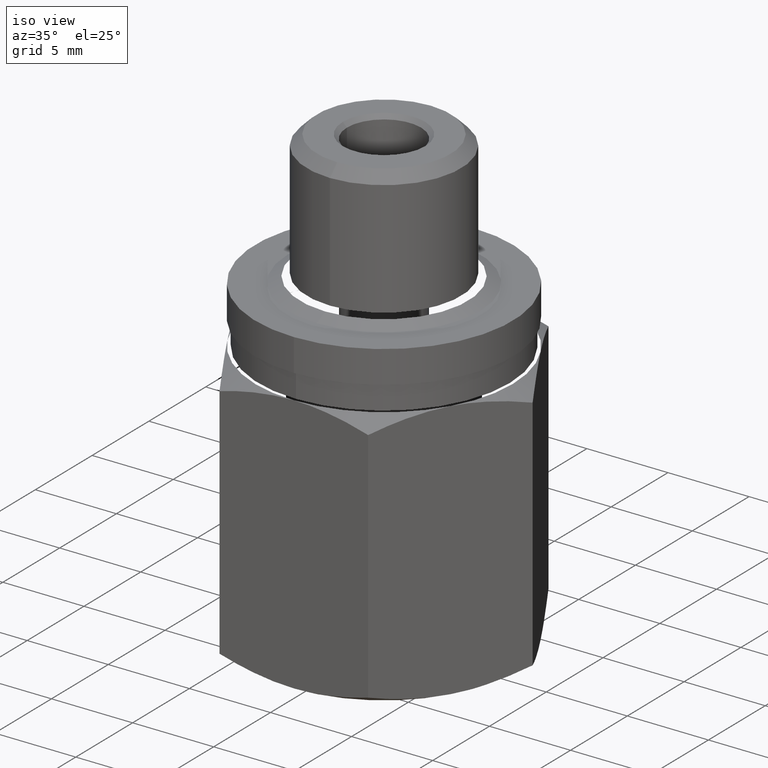
[diagram: clean part render]
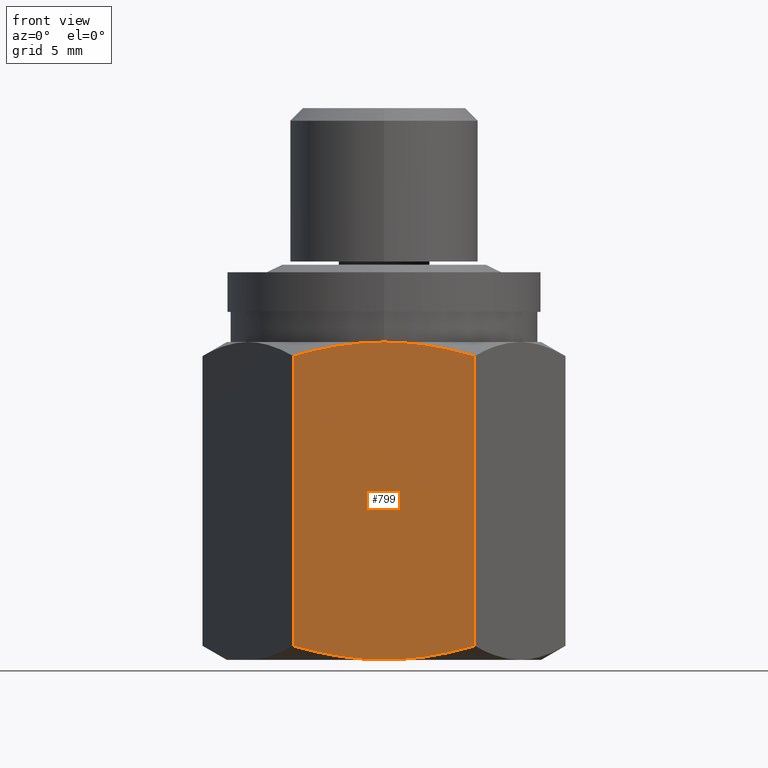
[diagram: tour spotlight — one face highlighted and labeled with its STEP entity id]
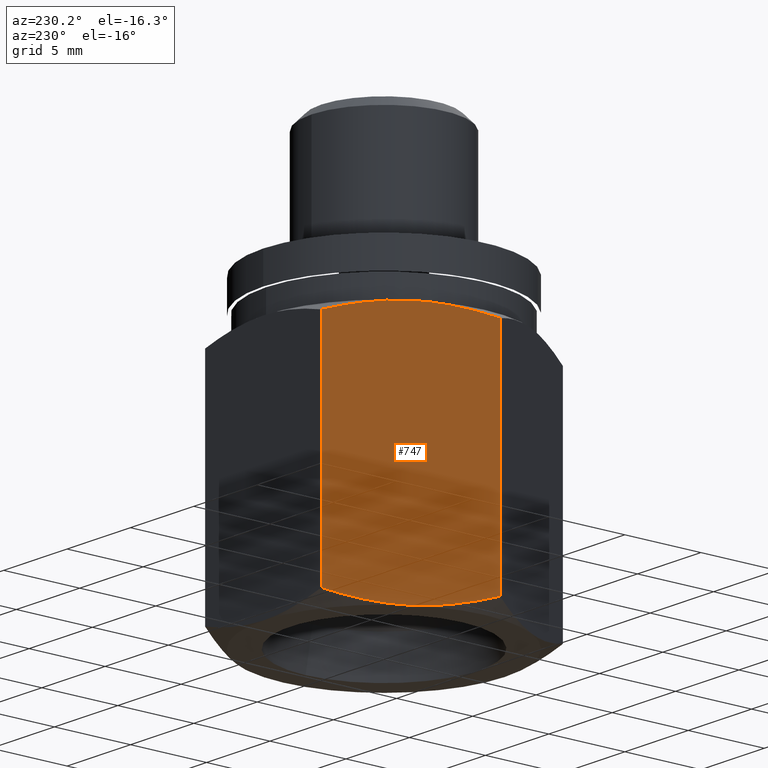
[diagram: tour spotlight — one face highlighted and labeled with its STEP entity id]
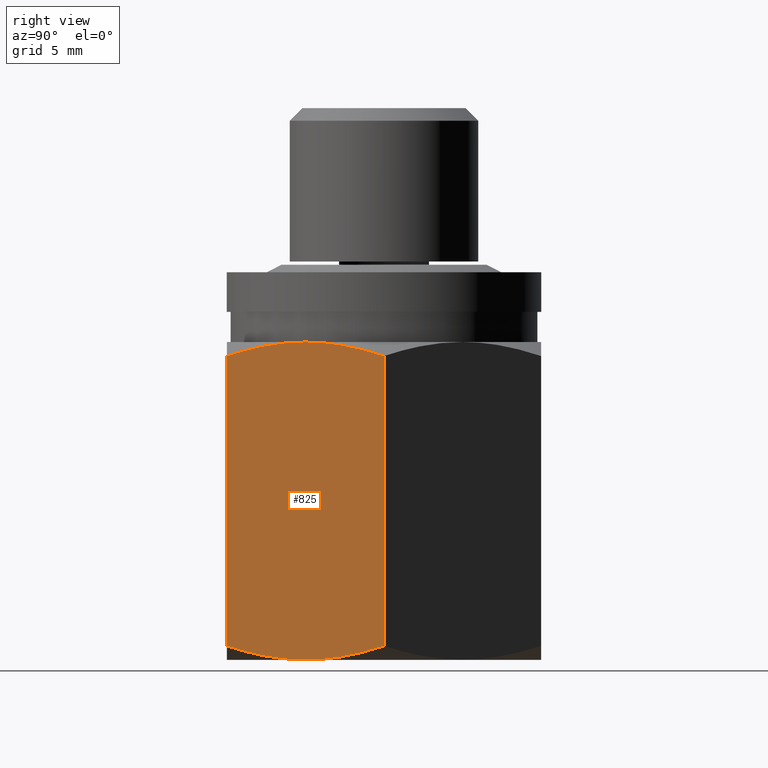
[diagram: tour spotlight — one face highlighted and labeled with its STEP entity id]
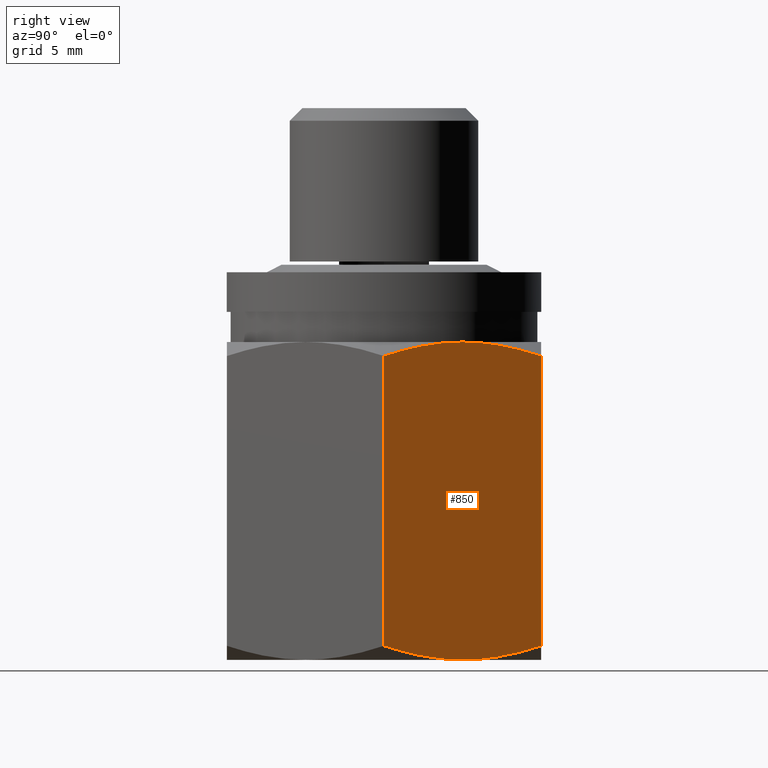
[diagram: tour spotlight — one face highlighted and labeled with its STEP entity id]
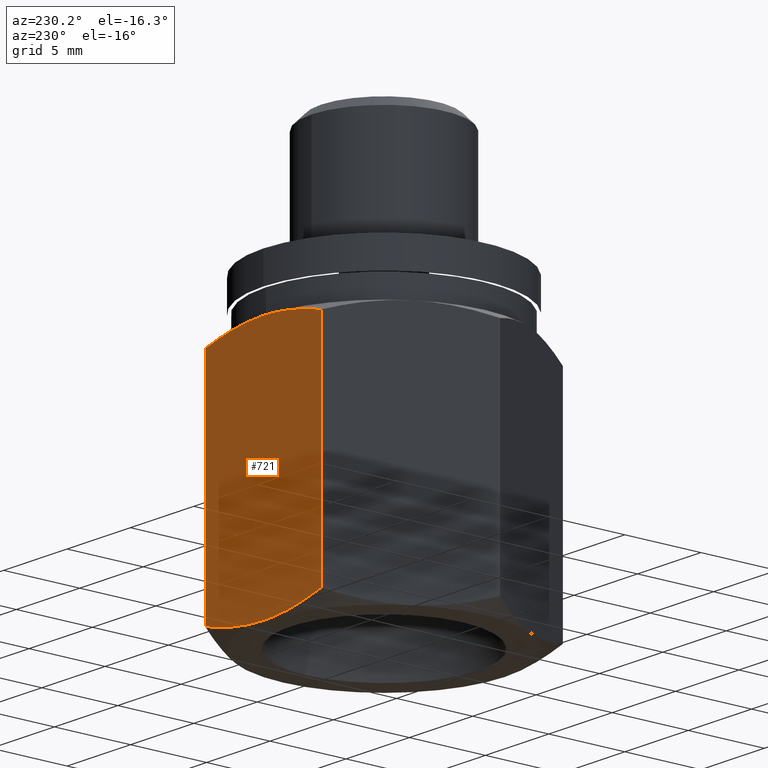
[diagram: tour spotlight — one face highlighted and labeled with its STEP entity id]
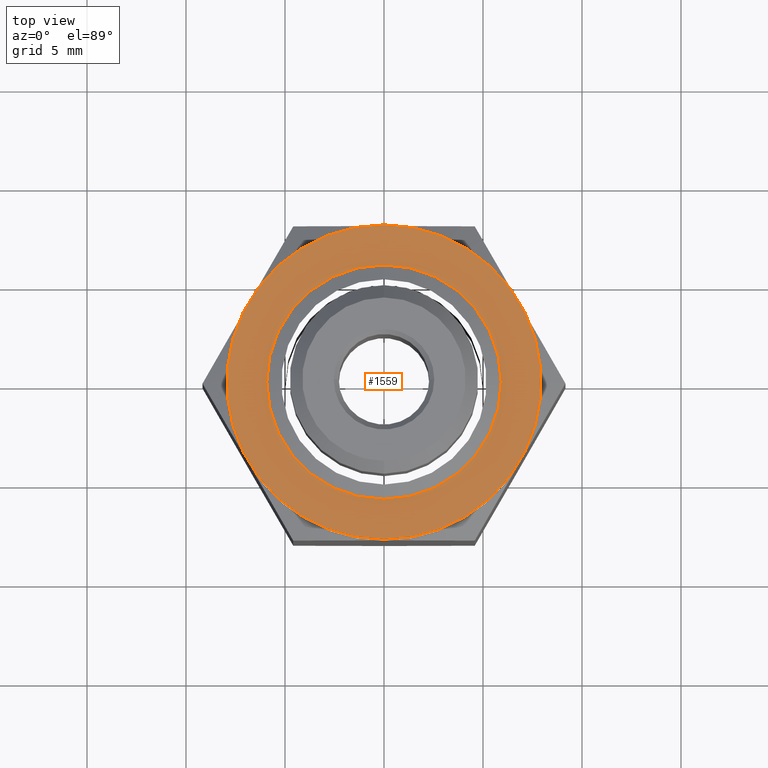
[diagram: tour spotlight — one face highlighted and labeled with its STEP entity id]
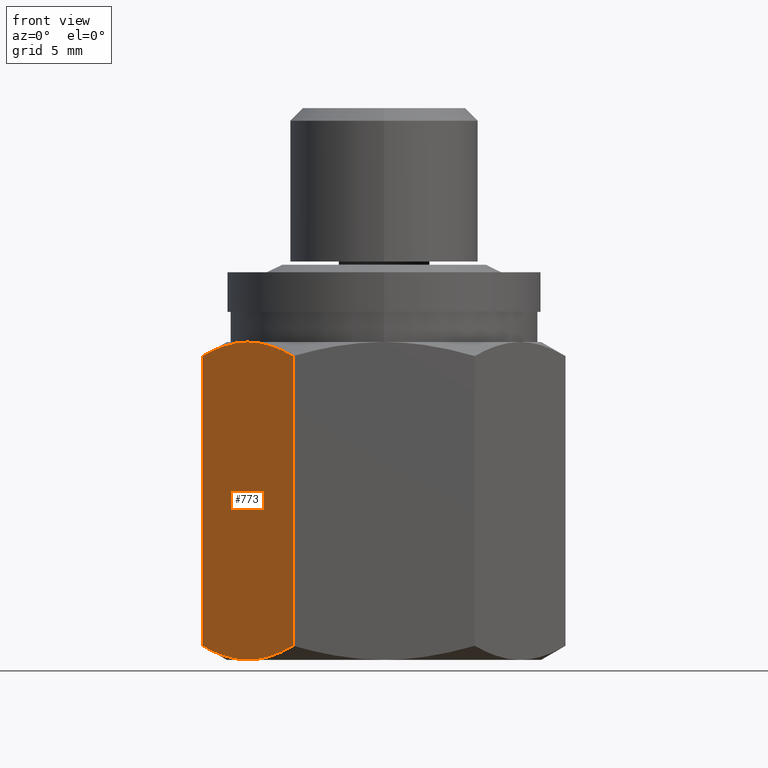
[diagram: tour spotlight — one face highlighted and labeled with its STEP entity id]
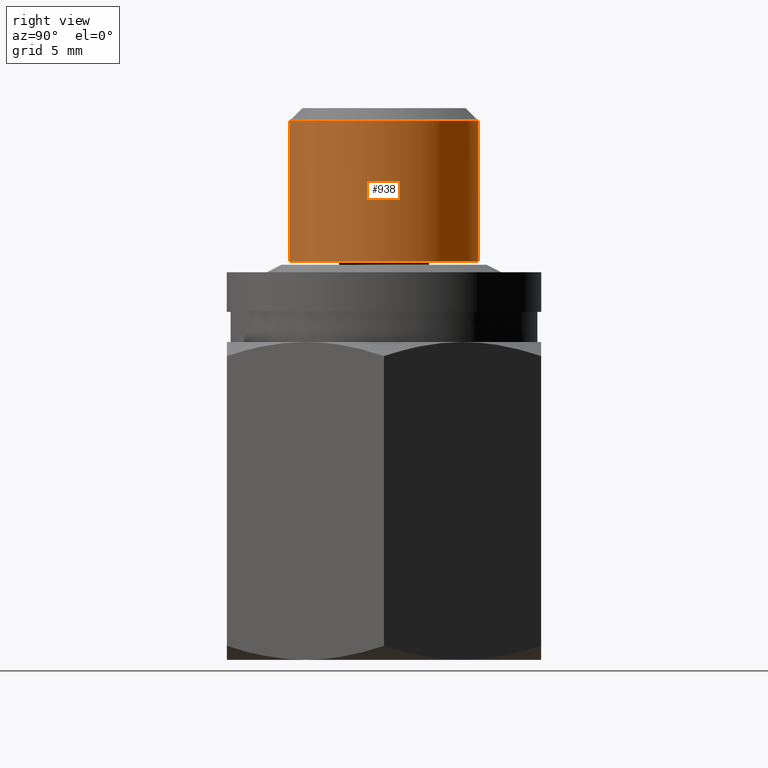
[diagram: tour spotlight — one face highlighted and labeled with its STEP entity id]
A machine part: a face-by-face anatomy tour. The part has 43 B-rep faces; the first image is the clean iso view, then the 8 largest visible faces are spotlighted one at a time (largest first), each with its STEP entity span.

Face 1 — front view, entity #799. In plain terms, the highlighted planar face has unit normal (0, -1, 0).
Definition (entity closure, byte-faithful):
#219=CARTESIAN_POINT('',(-1.804219591218E-1,-3.125E-1,6.140886257884E-1));
#243=CARTESIAN_POINT('',(-1.804219591218E-1,-3.125E-1,6.140886257884E-1));
#244=CARTESIAN_POINT('',(-1.676476933301E-1,-3.125E-1,6.177762386852E-1));
#245=CARTESIAN_POINT('',(-1.425130374881E-1,-3.125E-1,6.244395216412E-1));
#246=CARTESIAN_POINT('',(-1.063505203457E-1,-3.125E-1,6.321723768668E-1));
#247=CARTESIAN_POINT('',(-7.076736542900E-2,-3.125E-1,6.377914402994E-1));
#248=CARTESIAN_POINT('',(-3.538157514809E-2,-3.125E-1,6.412264455286E-1));
#249=CARTESIAN_POINT('',(-1.178700062577E-2,-3.125E-1,6.419999999989E-1));
#250=CARTESIAN_POINT('',(-3.403681971502E-11,-3.125E-1,6.420000000004E-1));
#252=CARTESIAN_POINT('',(-3.403681971502E-11,-3.125E-1,6.420000000004E-1));
#253=CARTESIAN_POINT('',(1.179003376579E-2,-3.125E-1,6.420000000004E-1));
#254=CARTESIAN_POINT('',(3.539010301308E-2,-3.125E-1,6.412260444374E-1));
#255=CARTESIAN_POINT('',(7.078380892595E-2,-3.125E-1,6.377895415508E-1));
#256=CARTESIAN_POINT('',(1.063703877697E-1,-3.125E-1,6.321683583414E-1));
#257=CARTESIAN_POINT('',(1.425054379211E-1,-3.125E-1,6.244410530485E-1));
#258=CARTESIAN_POINT('',(1.676439540257E-1,-3.125E-1,6.177773181294E-1));
#259=CARTESIAN_POINT('',(1.804219591218E-1,-3.125E-1,6.140886257884E-1));
#261=CARTESIAN_POINT('',(-3.577946565269E-11,-3.125000000008E-1,
9.999999999728E-3));
#262=CARTESIAN_POINT('',(1.179990032529E-2,-3.125000000008E-1,
9.999999999728E-3));
#263=CARTESIAN_POINT('',(3.541651289478E-2,-3.124999999996E-1,
1.077526852884E-2));
#264=CARTESIAN_POINT('',(7.082540042885E-2,-3.125000000001E-1,
1.421553514686E-2));
#265=CARTESIAN_POINT('',(1.064177237590E-1,-3.125E-1,1.984066810150E-2));
#266=CARTESIAN_POINT('',(1.425306468530E-1,-3.125E-1,2.756546268185E-2));
#267=CARTESIAN_POINT('',(1.676534650936E-1,-3.125E-1,3.422542747942E-2));
#268=CARTESIAN_POINT('',(1.804219591218E-1,-3.125E-1,3.791137421158E-2));
#270=CARTESIAN_POINT('',(-1.804219591218E-1,-3.125E-1,3.791137421158E-2));
#271=CARTESIAN_POINT('',(-1.676555310705E-1,-3.125E-1,3.422602387558E-2));
#272=CARTESIAN_POINT('',(-1.425347772302E-1,-3.125E-1,2.756630550637E-2));
#273=CARTESIAN_POINT('',(-1.064074824283E-1,-3.125E-1,1.983857860519E-2));
#274=CARTESIAN_POINT('',(-7.081545652493E-2,-3.125000000001E-1,
1.421433805572E-2));
#275=CARTESIAN_POINT('',(-3.541006988518E-2,-3.124999999996E-1,
1.077493875540E-2));
#276=CARTESIAN_POINT('',(-1.179744973759E-2,-3.125000000008E-1,
1.000000000123E-2));
#277=CARTESIAN_POINT('',(-3.577946565269E-11,-3.125000000008E-1,
9.999999999728E-3));
#279=DIRECTION('',(0.E0,0.E0,1.E0));
#280=VECTOR('',#279,5.761772515768E-1);
#281=CARTESIAN_POINT('',(-1.804219591218E-1,-3.125E-1,3.791137421158E-2));
#282=LINE('',#281,#280);
#310=CARTESIAN_POINT('',(1.804219591218E-1,-3.125E-1,3.791137421158E-2));
#319=DIRECTION('',(0.E0,0.E0,1.E0));
#320=VECTOR('',#319,5.761772515768E-1);
#321=CARTESIAN_POINT('',(1.804219591218E-1,-3.125E-1,3.791137421158E-2));
#322=LINE('',#321,#320);
#647=VERTEX_POINT('',#270);
#648=VERTEX_POINT('',#277);
#649=VERTEX_POINT('',#310);
#659=VERTEX_POINT('',#219);
#660=VERTEX_POINT('',#250);
#661=VERTEX_POINT('',#259);
#781=CARTESIAN_POINT('',(-1.804219591218E-1,-3.125E-1,0.E0));
#782=DIRECTION('',(0.E0,-1.E0,0.E0));
#783=DIRECTION('',(1.E0,0.E0,0.E0));
#784=AXIS2_PLACEMENT_3D('',#781,#782,#783);
#785=PLANE('',#784);
#787=ORIENTED_EDGE('',*,*,#786,.T.);
#789=ORIENTED_EDGE('',*,*,#788,.T.);
#791=ORIENTED_EDGE('',*,*,#790,.F.);
#793=ORIENTED_EDGE('',*,*,#792,.F.);
#795=ORIENTED_EDGE('',*,*,#794,.F.);
#796=ORIENTED_EDGE('',*,*,#764,.T.);
#797=EDGE_LOOP('',(#787,#789,#791,#793,#795,#796));
#798=FACE_OUTER_BOUND('',#797,.F.);
#251=B_SPLINE_CURVE_WITH_KNOTS('',3,(#243,#244,#245,#246,#247,#248,#249,#250),
.UNSPECIFIED.,.F.,.F.,(4,1,1,1,1,4),(0.E0,2.E-1,4.E-1,6.E-1,8.E-1,1.E0),
.UNSPECIFIED.);
#260=B_SPLINE_CURVE_WITH_KNOTS('',3,(#252,#253,#254,#255,#256,#257,#258,#259),
.UNSPECIFIED.,.F.,.F.,(4,1,1,1,1,4),(0.E0,2.E-1,4.E-1,6.E-1,8.E-1,1.E0),
.UNSPECIFIED.);
#269=B_SPLINE_CURVE_WITH_KNOTS('',3,(#261,#262,#263,#264,#265,#266,#267,#268),
.UNSPECIFIED.,.F.,.F.,(4,1,1,1,1,4),(0.E0,2.E-1,4.E-1,6.E-1,8.E-1,1.E0),
.UNSPECIFIED.);
#278=B_SPLINE_CURVE_WITH_KNOTS('',3,(#270,#271,#272,#273,#274,#275,#276,#277),
.UNSPECIFIED.,.F.,.F.,(4,1,1,1,1,4),(0.E0,2.E-1,4.E-1,6.E-1,8.E-1,1.E0),
.UNSPECIFIED.);
#764=EDGE_CURVE('',#647,#659,#282,.T.);
#786=EDGE_CURVE('',#659,#660,#251,.T.);
#788=EDGE_CURVE('',#660,#661,#260,.T.);
#790=EDGE_CURVE('',#649,#661,#322,.T.);
#792=EDGE_CURVE('',#648,#649,#269,.T.);
#794=EDGE_CURVE('',#647,#648,#278,.T.);
#799=ADVANCED_FACE('',(#798),#785,.T.);

Face 2 — auxiliary view, entity #747. In plain terms, the highlighted planar face has unit normal (-0.866, 0.5, 0).
Definition (entity closure, byte-faithful):
#139=CARTESIAN_POINT('',(-1.804219591218E-1,3.125E-1,6.140886257884E-1));
#163=CARTESIAN_POINT('',(-1.804219591218E-1,3.125E-1,6.140886257884E-1));
#164=CARTESIAN_POINT('',(-1.868090920180E-1,3.014371613090E-1,
6.177762386854E-1));
#165=CARTESIAN_POINT('',(-1.993764199397E-1,2.796699108332E-1,
6.244395216417E-1));
#166=CARTESIAN_POINT('',(-2.174576785120E-1,2.483522523212E-1,
6.321723768677E-1));
#167=CARTESIAN_POINT('',(-2.352492559712E-1,2.175363362151E-1,
6.377914403003E-1));
#168=CARTESIAN_POINT('',(-2.529421511136E-1,1.868913428954E-1,
6.412264455293E-1));
#169=CARTESIAN_POINT('',(-2.647394383733E-1,1.664578419702E-1,
6.419999999990E-1));
#170=CARTESIAN_POINT('',(-2.706329386683E-1,1.562500000249E-1,
6.420000000003E-1));
#172=CARTESIAN_POINT('',(-2.706329386683E-1,1.562500000249E-1,
6.420000000003E-1));
#173=CARTESIAN_POINT('',(-2.765279555667E-1,1.460395312453E-1,
6.420000000003E-1));
#174=CARTESIAN_POINT('',(-2.883279901886E-1,1.256012717491E-1,
6.412260444374E-1));
#175=CARTESIAN_POINT('',(-3.060248431458E-1,9.494942329325E-2,
6.377895415508E-1));
#176=CARTESIAN_POINT('',(-3.238181325674E-1,6.413054198114E-2,
6.321683583414E-1));
#177=CARTESIAN_POINT('',(-3.418856576432E-1,3.283667058290E-2,
6.244410530485E-1));
#178=CARTESIAN_POINT('',(-3.544549156955E-1,1.106607702287E-2,
6.177773181294E-1));
#179=CARTESIAN_POINT('',(-3.608439182435E-1,0.E0,6.140886257884E-1));
#181=CARTESIAN_POINT('',(-2.706329386690E-1,1.562500000251E-1,
9.999999999775E-3));
#182=CARTESIAN_POINT('',(-2.765328888481E-1,1.460309865529E-1,
9.999999999775E-3));
#183=CARTESIAN_POINT('',(-2.883411951287E-1,1.255784001212E-1,
1.077526852882E-2));
#184=CARTESIAN_POINT('',(-3.060456388974E-1,9.491340399500E-2,
1.421553514687E-2));
#185=CARTESIAN_POINT('',(-3.238418005621E-1,6.408954781188E-2,
1.984066810149E-2));
#186=CARTESIAN_POINT('',(-3.418982621092E-1,3.281483900741E-2,
2.756546268185E-2));
#187=CARTESIAN_POINT('',(-3.544596712294E-1,1.105784019647E-2,
3.422542747942E-2));
#188=CARTESIAN_POINT('',(-3.608439182435E-1,0.E0,3.791137421158E-2));
#190=CARTESIAN_POINT('',(-1.804219591218E-1,3.125E-1,3.791137421158E-2));
#191=CARTESIAN_POINT('',(-1.868051731480E-1,3.014439489909E-1,
3.422602387522E-2));
#192=CARTESIAN_POINT('',(-1.993655500694E-1,2.796887380010E-1,
2.756630550543E-2));
#193=CARTESIAN_POINT('',(-2.174291974720E-1,2.484015829295E-1,
1.983857860382E-2));
#194=CARTESIAN_POINT('',(-2.352252104252E-1,2.175779843227E-1,
1.421433805431E-2));
#195=CARTESIAN_POINT('',(-2.529279037477E-1,1.869160200564E-1,
1.077493875446E-2));
#196=CARTESIAN_POINT('',(-2.647342138204E-1,1.664668911628E-1,
1.000000000078E-2));
#197=CARTESIAN_POINT('',(-2.706329386690E-1,1.562500000251E-1,
9.999999999775E-3));
#199=DIRECTION('',(0.E0,0.E0,1.E0));
#200=VECTOR('',#199,5.761772515768E-1);
#201=CARTESIAN_POINT('',(-1.804219591218E-1,3.125E-1,3.791137421158E-2));
#202=LINE('',#201,#200);
#230=CARTESIAN_POINT('',(-3.608439182435E-1,0.E0,3.791137421158E-2));
#239=DIRECTION('',(0.E0,0.E0,1.E0));
#240=VECTOR('',#239,5.761772515768E-1);
#241=CARTESIAN_POINT('',(-3.608439182435E-1,0.E0,3.791137421158E-2));
#242=LINE('',#241,#240);
#643=VERTEX_POINT('',#190);
#644=VERTEX_POINT('',#197);
#645=VERTEX_POINT('',#230);
#655=VERTEX_POINT('',#139);
#656=VERTEX_POINT('',#170);
#657=VERTEX_POINT('',#179);
#729=CARTESIAN_POINT('',(-1.804219591218E-1,3.125E-1,0.E0));
#730=DIRECTION('',(-8.660254037844E-1,5.E-1,0.E0));
#731=DIRECTION('',(-5.E-1,-8.660254037844E-1,0.E0));
#732=AXIS2_PLACEMENT_3D('',#729,#730,#731);
#733=PLANE('',#732);
#735=ORIENTED_EDGE('',*,*,#734,.T.);
#737=ORIENTED_EDGE('',*,*,#736,.T.);
#739=ORIENTED_EDGE('',*,*,#738,.F.);
#741=ORIENTED_EDGE('',*,*,#740,.F.);
#743=ORIENTED_EDGE('',*,*,#742,.F.);
#744=ORIENTED_EDGE('',*,*,#711,.T.);
#745=EDGE_LOOP('',(#735,#737,#739,#741,#743,#744));
#746=FACE_OUTER_BOUND('',#745,.F.);
#171=B_SPLINE_CURVE_WITH_KNOTS('',3,(#163,#164,#165,#166,#167,#168,#169,#170),
.UNSPECIFIED.,.F.,.F.,(4,1,1,1,1,4),(0.E0,2.E-1,4.E-1,6.E-1,8.E-1,1.E0),
.UNSPECIFIED.);
#180=B_SPLINE_CURVE_WITH_KNOTS('',3,(#172,#173,#174,#175,#176,#177,#178,#179),
.UNSPECIFIED.,.F.,.F.,(4,1,1,1,1,4),(0.E0,2.E-1,4.E-1,6.E-1,8.E-1,1.E0),
.UNSPECIFIED.);
#189=B_SPLINE_CURVE_WITH_KNOTS('',3,(#181,#182,#183,#184,#185,#186,#187,#188),
.UNSPECIFIED.,.F.,.F.,(4,1,1,1,1,4),(0.E0,2.E-1,4.E-1,6.E-1,8.E-1,1.E0),
.UNSPECIFIED.);
#198=B_SPLINE_CURVE_WITH_KNOTS('',3,(#190,#191,#192,#193,#194,#195,#196,#197),
.UNSPECIFIED.,.F.,.F.,(4,1,1,1,1,4),(0.E0,2.E-1,4.E-1,6.E-1,8.E-1,1.E0),
.UNSPECIFIED.);
#711=EDGE_CURVE('',#643,#655,#202,.T.);
#734=EDGE_CURVE('',#655,#656,#171,.T.);
#736=EDGE_CURVE('',#656,#657,#180,.T.);
#738=EDGE_CURVE('',#645,#657,#242,.T.);
#740=EDGE_CURVE('',#644,#645,#189,.T.);
#742=EDGE_CURVE('',#643,#644,#198,.T.);
#747=ADVANCED_FACE('',(#746),#733,.T.);

Face 3 — right view, entity #825. In plain terms, the highlighted planar face has unit normal (0.866, -0.5, 0).
Definition (entity closure, byte-faithful):
#259=CARTESIAN_POINT('',(1.804219591218E-1,-3.125E-1,6.140886257884E-1));
#283=CARTESIAN_POINT('',(1.804219591218E-1,-3.125E-1,6.140886257884E-1));
#284=CARTESIAN_POINT('',(1.868090920180E-1,-3.014371613090E-1,
6.177762386854E-1));
#285=CARTESIAN_POINT('',(1.993764199397E-1,-2.796699108332E-1,
6.244395216417E-1));
#286=CARTESIAN_POINT('',(2.174576785120E-1,-2.483522523212E-1,
6.321723768677E-1));
#287=CARTESIAN_POINT('',(2.352492559712E-1,-2.175363362151E-1,
6.377914403003E-1));
#288=CARTESIAN_POINT('',(2.529421511136E-1,-1.868913428954E-1,
6.412264455293E-1));
#289=CARTESIAN_POINT('',(2.647394383733E-1,-1.664578419702E-1,
6.419999999990E-1));
#290=CARTESIAN_POINT('',(2.706329386683E-1,-1.562500000249E-1,
6.420000000003E-1));
#292=CARTESIAN_POINT('',(2.706329386683E-1,-1.562500000249E-1,
6.420000000003E-1));
#293=CARTESIAN_POINT('',(2.765279555667E-1,-1.460395312453E-1,
6.420000000003E-1));
#294=CARTESIAN_POINT('',(2.883279901886E-1,-1.256012717491E-1,
6.412260444374E-1));
#295=CARTESIAN_POINT('',(3.060248431458E-1,-9.494942329325E-2,
6.377895415508E-1));
#296=CARTESIAN_POINT('',(3.238181325674E-1,-6.413054198114E-2,
6.321683583414E-1));
#297=CARTESIAN_POINT('',(3.418856576432E-1,-3.283667058290E-2,
6.244410530485E-1));
#298=CARTESIAN_POINT('',(3.544549156955E-1,-1.106607702287E-2,
6.177773181294E-1));
#299=CARTESIAN_POINT('',(3.608439182435E-1,0.E0,6.140886257884E-1));
#301=CARTESIAN_POINT('',(2.706329386690E-1,-1.562500000251E-1,
9.999999999775E-3));
#302=CARTESIAN_POINT('',(2.765328888481E-1,-1.460309865529E-1,
9.999999999775E-3));
#303=CARTESIAN_POINT('',(2.883411951287E-1,-1.255784001212E-1,
1.077526852882E-2));
#304=CARTESIAN_POINT('',(3.060456388974E-1,-9.491340399500E-2,
1.421553514687E-2));
#305=CARTESIAN_POINT('',(3.238418005621E-1,-6.408954781188E-2,
1.984066810149E-2));
#306=CARTESIAN_POINT('',(3.418982621092E-1,-3.281483900741E-2,
2.756546268185E-2));
#307=CARTESIAN_POINT('',(3.544596712294E-1,-1.105784019647E-2,
3.422542747942E-2));
#308=CARTESIAN_POINT('',(3.608439182435E-1,0.E0,3.791137421158E-2));
#310=CARTESIAN_POINT('',(1.804219591218E-1,-3.125E-1,3.791137421158E-2));
#311=CARTESIAN_POINT('',(1.868051731480E-1,-3.014439489909E-1,
3.422602387522E-2));
#312=CARTESIAN_POINT('',(1.993655500694E-1,-2.796887380010E-1,
2.756630550543E-2));
#313=CARTESIAN_POINT('',(2.174291974720E-1,-2.484015829295E-1,
1.983857860382E-2));
#314=CARTESIAN_POINT('',(2.352252104252E-1,-2.175779843227E-1,
1.421433805431E-2));
#315=CARTESIAN_POINT('',(2.529279037477E-1,-1.869160200564E-1,
1.077493875446E-2));
#316=CARTESIAN_POINT('',(2.647342138204E-1,-1.664668911628E-1,
1.000000000078E-2));
#317=CARTESIAN_POINT('',(2.706329386690E-1,-1.562500000251E-1,
9.999999999775E-3));
#319=DIRECTION('',(0.E0,0.E0,1.E0));
#320=VECTOR('',#319,5.761772515768E-1);
#321=CARTESIAN_POINT('',(1.804219591218E-1,-3.125E-1,3.791137421158E-2));
#322=LINE('',#321,#320);
#350=CARTESIAN_POINT('',(3.608439182435E-1,0.E0,3.791137421158E-2));
#359=DIRECTION('',(0.E0,0.E0,1.E0));
#360=VECTOR('',#359,5.761772515768E-1);
#361=CARTESIAN_POINT('',(3.608439182435E-1,0.E0,3.791137421158E-2));
#362=LINE('',#361,#360);
#649=VERTEX_POINT('',#310);
#650=VERTEX_POINT('',#317);
#651=VERTEX_POINT('',#350);
#661=VERTEX_POINT('',#259);
#662=VERTEX_POINT('',#290);
#663=VERTEX_POINT('',#299);
#807=CARTESIAN_POINT('',(1.804219591218E-1,-3.125E-1,0.E0));
#808=DIRECTION('',(8.660254037844E-1,-5.E-1,0.E0));
#809=DIRECTION('',(5.E-1,8.660254037844E-1,0.E0));
#810=AXIS2_PLACEMENT_3D('',#807,#808,#809);
#811=PLANE('',#810);
#813=ORIENTED_EDGE('',*,*,#812,.T.);
#815=ORIENTED_EDGE('',*,*,#814,.T.);
#817=ORIENTED_EDGE('',*,*,#816,.F.);
#819=ORIENTED_EDGE('',*,*,#818,.F.);
#821=ORIENTED_EDGE('',*,*,#820,.F.);
#822=ORIENTED_EDGE('',*,*,#790,.T.);
#823=EDGE_LOOP('',(#813,#815,#817,#819,#821,#822));
#824=FACE_OUTER_BOUND('',#823,.F.);
#291=B_SPLINE_CURVE_WITH_KNOTS('',3,(#283,#284,#285,#286,#287,#288,#289,#290),
.UNSPECIFIED.,.F.,.F.,(4,1,1,1,1,4),(0.E0,2.E-1,4.E-1,6.E-1,8.E-1,1.E0),
.UNSPECIFIED.);
#300=B_SPLINE_CURVE_WITH_KNOTS('',3,(#292,#293,#294,#295,#296,#297,#298,#299),
.UNSPECIFIED.,.F.,.F.,(4,1,1,1,1,4),(0.E0,2.E-1,4.E-1,6.E-1,8.E-1,1.E0),
.UNSPECIFIED.);
#309=B_SPLINE_CURVE_WITH_KNOTS('',3,(#301,#302,#303,#304,#305,#306,#307,#308),
.UNSPECIFIED.,.F.,.F.,(4,1,1,1,1,4),(0.E0,2.E-1,4.E-1,6.E-1,8.E-1,1.E0),
.UNSPECIFIED.);
#318=B_SPLINE_CURVE_WITH_KNOTS('',3,(#310,#311,#312,#313,#314,#315,#316,#317),
.UNSPECIFIED.,.F.,.F.,(4,1,1,1,1,4),(0.E0,2.E-1,4.E-1,6.E-1,8.E-1,1.E0),
.UNSPECIFIED.);
#790=EDGE_CURVE('',#649,#661,#322,.T.);
#812=EDGE_CURVE('',#661,#662,#291,.T.);
#814=EDGE_CURVE('',#662,#663,#300,.T.);
#816=EDGE_CURVE('',#651,#663,#362,.T.);
#818=EDGE_CURVE('',#650,#651,#309,.T.);
#820=EDGE_CURVE('',#649,#650,#318,.T.);
#825=ADVANCED_FACE('',(#824),#811,.T.);

Face 4 — right view, entity #850. In plain terms, the highlighted planar face has unit normal (0.866, 0.5, 0).
Definition (entity closure, byte-faithful):
#123=CARTESIAN_POINT('',(1.804219591218E-1,3.125E-1,6.140886257884E-1));
#150=CARTESIAN_POINT('',(1.804219591218E-1,3.125E-1,3.791137421158E-2));
#159=DIRECTION('',(0.E0,0.E0,1.E0));
#160=VECTOR('',#159,5.761772515768E-1);
#161=CARTESIAN_POINT('',(1.804219591218E-1,3.125E-1,3.791137421158E-2));
#162=LINE('',#161,#160);
#299=CARTESIAN_POINT('',(3.608439182435E-1,0.E0,6.140886257884E-1));
#323=CARTESIAN_POINT('',(3.608439182435E-1,0.E0,6.140886257884E-1));
#324=CARTESIAN_POINT('',(3.544567853475E-1,1.106283869064E-2,
6.177762386853E-1));
#325=CARTESIAN_POINT('',(3.418894574261E-1,3.283008916584E-2,
6.244395216415E-1));
#326=CARTESIAN_POINT('',(3.238081988543E-1,6.414774767706E-2,
6.321723768673E-1));
#327=CARTESIAN_POINT('',(3.060166213956E-1,9.496366378220E-2,
6.377914402999E-1));
#328=CARTESIAN_POINT('',(2.883237262534E-1,1.256086571015E-1,
6.412264455291E-1));
#329=CARTESIAN_POINT('',(2.765264389947E-1,1.460421580250E-1,
6.419999999988E-1));
#330=CARTESIAN_POINT('',(2.706329386987E-1,1.562499999722E-1,
6.420000000003E-1));
#332=CARTESIAN_POINT('',(2.706329386987E-1,1.562499999722E-1,
6.420000000003E-1));
#333=CARTESIAN_POINT('',(2.647379218002E-1,1.664604687518E-1,
6.420000000003E-1));
#334=CARTESIAN_POINT('',(2.529378871759E-1,1.868987282523E-1,
6.412260444374E-1));
#335=CARTESIAN_POINT('',(2.352410342197E-1,2.175505767064E-1,
6.377895415508E-1));
#336=CARTESIAN_POINT('',(2.174477447978E-1,2.483694580190E-1,
6.321683583414E-1));
#337=CARTESIAN_POINT('',(1.993802197221E-1,2.796633294171E-1,
6.244410530485E-1));
#338=CARTESIAN_POINT('',(1.868109616698E-1,3.014339229771E-1,
6.177773181294E-1));
#339=CARTESIAN_POINT('',(1.804219591218E-1,3.125E-1,6.140886257884E-1));
#341=CARTESIAN_POINT('',(2.706329387005E-1,1.562499999707E-1,
9.999999999775E-3));
#342=CARTESIAN_POINT('',(2.647329885214E-1,1.664690134429E-1,
9.999999999775E-3));
#343=CARTESIAN_POINT('',(2.529246822346E-1,1.869215998807E-1,
1.077526852882E-2));
#344=CARTESIAN_POINT('',(2.352202384684E-1,2.175865960045E-1,
1.421553514687E-2));
#345=CARTESIAN_POINT('',(2.174240768031E-1,2.484104521883E-1,
1.984066810149E-2));
#346=CARTESIAN_POINT('',(1.993676152561E-1,2.796851609925E-1,
2.756546268185E-2));
#347=CARTESIAN_POINT('',(1.868062061358E-1,3.014421598035E-1,
3.422542747942E-2));
#348=CARTESIAN_POINT('',(1.804219591218E-1,3.125E-1,3.791137421158E-2));
#350=CARTESIAN_POINT('',(3.608439182435E-1,0.E0,3.791137421158E-2));
#351=CARTESIAN_POINT('',(3.544607042177E-1,1.105605100834E-2,
3.422602387546E-2));
#352=CARTESIAN_POINT('',(3.419003272971E-1,3.281126199694E-2,
2.756630550605E-2));
#353=CARTESIAN_POINT('',(3.238366798955E-1,6.409841706649E-2,
1.983857860472E-2));
#354=CARTESIAN_POINT('',(3.060406669437E-1,9.492201567143E-2,
1.421433805527E-2));
#355=CARTESIAN_POINT('',(2.883379736216E-1,1.255839799353E-1,
1.077493875499E-2));
#356=CARTESIAN_POINT('',(2.765316635516E-1,1.460331088287E-1,
1.000000000128E-2));
#357=CARTESIAN_POINT('',(2.706329387005E-1,1.562499999707E-1,
9.999999999775E-3));
#359=DIRECTION('',(0.E0,0.E0,1.E0));
#360=VECTOR('',#359,5.761772515768E-1);
#361=CARTESIAN_POINT('',(3.608439182435E-1,0.E0,3.791137421158E-2));
#362=LINE('',#361,#360);
#641=VERTEX_POINT('',#150);
#651=VERTEX_POINT('',#350);
#652=VERTEX_POINT('',#357);
#653=VERTEX_POINT('',#123);
#663=VERTEX_POINT('',#299);
#664=VERTEX_POINT('',#330);
#833=CARTESIAN_POINT('',(3.608439182435E-1,0.E0,0.E0));
#834=DIRECTION('',(8.660254037844E-1,5.E-1,0.E0));
#835=DIRECTION('',(-5.E-1,8.660254037844E-1,0.E0));
#836=AXIS2_PLACEMENT_3D('',#833,#834,#835);
#837=PLANE('',#836);
#839=ORIENTED_EDGE('',*,*,#838,.T.);
#841=ORIENTED_EDGE('',*,*,#840,.T.);
#842=ORIENTED_EDGE('',*,*,#717,.F.);
#844=ORIENTED_EDGE('',*,*,#843,.F.);
#846=ORIENTED_EDGE('',*,*,#845,.F.);
#847=ORIENTED_EDGE('',*,*,#816,.T.);
#848=EDGE_LOOP('',(#839,#841,#842,#844,#846,#847));
#849=FACE_OUTER_BOUND('',#848,.F.);
#331=B_SPLINE_CURVE_WITH_KNOTS('',3,(#323,#324,#325,#326,#327,#328,#329,#330),
.UNSPECIFIED.,.F.,.F.,(4,1,1,1,1,4),(0.E0,2.E-1,4.E-1,6.E-1,8.E-1,1.E0),
.UNSPECIFIED.);
#340=B_SPLINE_CURVE_WITH_KNOTS('',3,(#332,#333,#334,#335,#336,#337,#338,#339),
.UNSPECIFIED.,.F.,.F.,(4,1,1,1,1,4),(0.E0,2.E-1,4.E-1,6.E-1,8.E-1,1.E0),
.UNSPECIFIED.);
#349=B_SPLINE_CURVE_WITH_KNOTS('',3,(#341,#342,#343,#344,#345,#346,#347,#348),
.UNSPECIFIED.,.F.,.F.,(4,1,1,1,1,4),(0.E0,2.E-1,4.E-1,6.E-1,8.E-1,1.E0),
.UNSPECIFIED.);
#358=B_SPLINE_CURVE_WITH_KNOTS('',3,(#350,#351,#352,#353,#354,#355,#356,#357),
.UNSPECIFIED.,.F.,.F.,(4,1,1,1,1,4),(0.E0,2.E-1,4.E-1,6.E-1,8.E-1,1.E0),
.UNSPECIFIED.);
#717=EDGE_CURVE('',#641,#653,#162,.T.);
#816=EDGE_CURVE('',#651,#663,#362,.T.);
#838=EDGE_CURVE('',#663,#664,#331,.T.);
#840=EDGE_CURVE('',#664,#653,#340,.T.);
#843=EDGE_CURVE('',#652,#641,#349,.T.);
#845=EDGE_CURVE('',#651,#652,#358,.T.);
#850=ADVANCED_FACE('',(#849),#837,.T.);

Face 5 — auxiliary view, entity #721. In plain terms, the highlighted planar face has unit normal (0, 1, 0).
Definition (entity closure, byte-faithful):
#123=CARTESIAN_POINT('',(1.804219591218E-1,3.125E-1,6.140886257884E-1));
#124=CARTESIAN_POINT('',(1.676476933301E-1,3.125E-1,6.177762386852E-1));
#125=CARTESIAN_POINT('',(1.425130374881E-1,3.125E-1,6.244395216412E-1));
#126=CARTESIAN_POINT('',(1.063505203457E-1,3.125E-1,6.321723768668E-1));
#127=CARTESIAN_POINT('',(7.076736542900E-2,3.125E-1,6.377914402994E-1));
#128=CARTESIAN_POINT('',(3.538157514809E-2,3.125E-1,6.412264455286E-1));
#129=CARTESIAN_POINT('',(1.178700062577E-2,3.125E-1,6.419999999989E-1));
#130=CARTESIAN_POINT('',(3.403734695900E-11,3.125E-1,6.420000000004E-1));
#132=CARTESIAN_POINT('',(3.403734695900E-11,3.125E-1,6.420000000004E-1));
#133=CARTESIAN_POINT('',(-1.179003376579E-2,3.125E-1,6.420000000004E-1));
#134=CARTESIAN_POINT('',(-3.539010301308E-2,3.125E-1,6.412260444374E-1));
#135=CARTESIAN_POINT('',(-7.078380892595E-2,3.125E-1,6.377895415508E-1));
#136=CARTESIAN_POINT('',(-1.063703877697E-1,3.125E-1,6.321683583414E-1));
#137=CARTESIAN_POINT('',(-1.425054379211E-1,3.125E-1,6.244410530485E-1));
#138=CARTESIAN_POINT('',(-1.676439540257E-1,3.125E-1,6.177773181294E-1));
#139=CARTESIAN_POINT('',(-1.804219591218E-1,3.125E-1,6.140886257884E-1));
#141=CARTESIAN_POINT('',(3.577905949636E-11,3.125000000008E-1,
9.999999999728E-3));
#142=CARTESIAN_POINT('',(-1.179990032529E-2,3.125000000008E-1,
9.999999999728E-3));
#143=CARTESIAN_POINT('',(-3.541651289478E-2,3.124999999996E-1,
1.077526852884E-2));
#144=CARTESIAN_POINT('',(-7.082540042885E-2,3.125000000001E-1,
1.421553514686E-2));
#145=CARTESIAN_POINT('',(-1.064177237590E-1,3.125E-1,1.984066810150E-2));
#146=CARTESIAN_POINT('',(-1.425306468530E-1,3.125E-1,2.756546268185E-2));
#147=CARTESIAN_POINT('',(-1.676534650936E-1,3.125E-1,3.422542747942E-2));
#148=CARTESIAN_POINT('',(-1.804219591218E-1,3.125E-1,3.791137421158E-2));
#150=CARTESIAN_POINT('',(1.804219591218E-1,3.125E-1,3.791137421158E-2));
#151=CARTESIAN_POINT('',(1.676555310705E-1,3.125E-1,3.422602387558E-2));
#152=CARTESIAN_POINT('',(1.425347772302E-1,3.125E-1,2.756630550637E-2));
#153=CARTESIAN_POINT('',(1.064074824283E-1,3.125E-1,1.983857860519E-2));
#154=CARTESIAN_POINT('',(7.081545652493E-2,3.125000000001E-1,
1.421433805572E-2));
#155=CARTESIAN_POINT('',(3.541006988518E-2,3.124999999996E-1,
1.077493875540E-2));
#156=CARTESIAN_POINT('',(1.179744973759E-2,3.125000000008E-1,
1.000000000123E-2));
#157=CARTESIAN_POINT('',(3.577905949636E-11,3.125000000008E-1,
9.999999999728E-3));
#159=DIRECTION('',(0.E0,0.E0,1.E0));
#160=VECTOR('',#159,5.761772515768E-1);
#161=CARTESIAN_POINT('',(1.804219591218E-1,3.125E-1,3.791137421158E-2));
#162=LINE('',#161,#160);
#190=CARTESIAN_POINT('',(-1.804219591218E-1,3.125E-1,3.791137421158E-2));
#199=DIRECTION('',(0.E0,0.E0,1.E0));
#200=VECTOR('',#199,5.761772515768E-1);
#201=CARTESIAN_POINT('',(-1.804219591218E-1,3.125E-1,3.791137421158E-2));
#202=LINE('',#201,#200);
#641=VERTEX_POINT('',#150);
#642=VERTEX_POINT('',#157);
#643=VERTEX_POINT('',#190);
#653=VERTEX_POINT('',#123);
#654=VERTEX_POINT('',#130);
#655=VERTEX_POINT('',#139);
#702=CARTESIAN_POINT('',(1.804219591218E-1,3.125E-1,0.E0));
#703=DIRECTION('',(0.E0,1.E0,0.E0));
#704=DIRECTION('',(-1.E0,0.E0,0.E0));
#705=AXIS2_PLACEMENT_3D('',#702,#703,#704);
#706=PLANE('',#705);
#708=ORIENTED_EDGE('',*,*,#707,.T.);
#710=ORIENTED_EDGE('',*,*,#709,.T.);
#712=ORIENTED_EDGE('',*,*,#711,.F.);
#714=ORIENTED_EDGE('',*,*,#713,.F.);
#716=ORIENTED_EDGE('',*,*,#715,.F.);
#718=ORIENTED_EDGE('',*,*,#717,.T.);
#719=EDGE_LOOP('',(#708,#710,#712,#714,#716,#718));
#720=FACE_OUTER_BOUND('',#719,.F.);
#131=B_SPLINE_CURVE_WITH_KNOTS('',3,(#123,#124,#125,#126,#127,#128,#129,#130),
.UNSPECIFIED.,.F.,.F.,(4,1,1,1,1,4),(0.E0,2.E-1,4.E-1,6.E-1,8.E-1,1.E0),
.UNSPECIFIED.);
#140=B_SPLINE_CURVE_WITH_KNOTS('',3,(#132,#133,#134,#135,#136,#137,#138,#139),
.UNSPECIFIED.,.F.,.F.,(4,1,1,1,1,4),(0.E0,2.E-1,4.E-1,6.E-1,8.E-1,1.E0),
.UNSPECIFIED.);
#149=B_SPLINE_CURVE_WITH_KNOTS('',3,(#141,#142,#143,#144,#145,#146,#147,#148),
.UNSPECIFIED.,.F.,.F.,(4,1,1,1,1,4),(0.E0,2.E-1,4.E-1,6.E-1,8.E-1,1.E0),
.UNSPECIFIED.);
#158=B_SPLINE_CURVE_WITH_KNOTS('',3,(#150,#151,#152,#153,#154,#155,#156,#157),
.UNSPECIFIED.,.F.,.F.,(4,1,1,1,1,4),(0.E0,2.E-1,4.E-1,6.E-1,8.E-1,1.E0),
.UNSPECIFIED.);
#707=EDGE_CURVE('',#653,#654,#131,.T.);
#709=EDGE_CURVE('',#654,#655,#140,.T.);
#711=EDGE_CURVE('',#643,#655,#202,.T.);
#713=EDGE_CURVE('',#642,#643,#149,.T.);
#715=EDGE_CURVE('',#641,#642,#158,.T.);
#717=EDGE_CURVE('',#641,#653,#162,.T.);
#721=ADVANCED_FACE('',(#720),#706,.T.);

Face 6 — top view, entity #1559. In plain terms, the highlighted planar face has unit normal (0, 0, -1).
Definition (entity closure, byte-faithful):
#1492=CARTESIAN_POINT('',(0.E0,0.E0,7.807401574803E-1));
#1493=DIRECTION('',(0.E0,0.E0,1.E0));
#1494=DIRECTION('',(0.E0,-1.E0,0.E0));
#1495=AXIS2_PLACEMENT_3D('',#1492,#1493,#1494);
#1497=CARTESIAN_POINT('',(0.E0,0.E0,7.807401574803E-1));
#1498=DIRECTION('',(0.E0,0.E0,1.E0));
#1499=DIRECTION('',(0.E0,1.E0,0.E0));
#1500=AXIS2_PLACEMENT_3D('',#1497,#1498,#1499);
#1506=CARTESIAN_POINT('',(0.E0,0.E0,7.807401574803E-1));
#1507=DIRECTION('',(0.E0,0.E0,1.E0));
#1508=DIRECTION('',(0.E0,1.E0,0.E0));
#1509=AXIS2_PLACEMENT_3D('',#1506,#1507,#1508);
#1525=CARTESIAN_POINT('',(0.E0,0.E0,7.807401574803E-1));
#1526=DIRECTION('',(0.E0,0.E0,-1.E0));
#1527=DIRECTION('',(0.E0,1.E0,0.E0));
#1528=AXIS2_PLACEMENT_3D('',#1525,#1526,#1527);
#1530=CARTESIAN_POINT('',(0.E0,3.125984251969E-1,7.807401574803E-1));
#1532=VERTEX_POINT('',#1530);
#1534=CARTESIAN_POINT('',(0.E0,-3.125984251969E-1,7.807401574803E-1));
#1536=VERTEX_POINT('',#1534);
#1538=CARTESIAN_POINT('',(0.E0,2.330708661417E-1,7.807401574803E-1));
#1539=CARTESIAN_POINT('',(0.E0,-2.330708661417E-1,7.807401574803E-1));
#1540=VERTEX_POINT('',#1538);
#1541=VERTEX_POINT('',#1539);
#1542=CARTESIAN_POINT('',(0.E0,0.E0,7.807401574803E-1));
#1543=DIRECTION('',(0.E0,0.E0,-1.E0));
#1544=DIRECTION('',(0.E0,1.E0,0.E0));
#1545=AXIS2_PLACEMENT_3D('',#1542,#1543,#1544);
#1546=PLANE('',#1545);
#1548=ORIENTED_EDGE('',*,*,#1547,.F.);
#1550=ORIENTED_EDGE('',*,*,#1549,.T.);
#1551=EDGE_LOOP('',(#1548,#1550));
#1552=FACE_OUTER_BOUND('',#1551,.F.);
#1554=ORIENTED_EDGE('',*,*,#1553,.T.);
#1556=ORIENTED_EDGE('',*,*,#1555,.T.);
#1557=EDGE_LOOP('',(#1554,#1556));
#1558=FACE_BOUND('',#1557,.F.);
#1496=CIRCLE('',#1495,2.330708661417E-1);
#1501=CIRCLE('',#1500,2.330708661417E-1);
#1510=CIRCLE('',#1509,3.125984251969E-1);
#1529=CIRCLE('',#1528,3.125984251969E-1);
#1547=EDGE_CURVE('',#1532,#1536,#1510,.T.);
#1549=EDGE_CURVE('',#1532,#1536,#1529,.T.);
#1553=EDGE_CURVE('',#1541,#1540,#1496,.T.);
#1555=EDGE_CURVE('',#1540,#1541,#1501,.T.);
#1559=ADVANCED_FACE('',(#1552,#1558),#1546,.F.);

Face 7 — front view, entity #773. In plain terms, the highlighted planar face has unit normal (-0.866, -0.5, 0).
Definition (entity closure, byte-faithful):
#179=CARTESIAN_POINT('',(-3.608439182435E-1,0.E0,6.140886257884E-1));
#203=CARTESIAN_POINT('',(-3.608439182435E-1,0.E0,6.140886257884E-1));
#204=CARTESIAN_POINT('',(-3.544567853475E-1,-1.106283869064E-2,
6.177762386853E-1));
#205=CARTESIAN_POINT('',(-3.418894574261E-1,-3.283008916584E-2,
6.244395216415E-1));
#206=CARTESIAN_POINT('',(-3.238081988543E-1,-6.414774767706E-2,
6.321723768673E-1));
#207=CARTESIAN_POINT('',(-3.060166213956E-1,-9.496366378220E-2,
6.377914402999E-1));
#208=CARTESIAN_POINT('',(-2.883237262534E-1,-1.256086571015E-1,
6.412264455291E-1));
#209=CARTESIAN_POINT('',(-2.765264389947E-1,-1.460421580250E-1,
6.419999999988E-1));
#210=CARTESIAN_POINT('',(-2.706329386987E-1,-1.562499999722E-1,
6.420000000003E-1));
#212=CARTESIAN_POINT('',(-2.706329386987E-1,-1.562499999722E-1,
6.420000000003E-1));
#213=CARTESIAN_POINT('',(-2.647379218002E-1,-1.664604687518E-1,
6.420000000003E-1));
#214=CARTESIAN_POINT('',(-2.529378871759E-1,-1.868987282523E-1,
6.412260444374E-1));
#215=CARTESIAN_POINT('',(-2.352410342197E-1,-2.175505767064E-1,
6.377895415508E-1));
#216=CARTESIAN_POINT('',(-2.174477447978E-1,-2.483694580190E-1,
6.321683583414E-1));
#217=CARTESIAN_POINT('',(-1.993802197221E-1,-2.796633294171E-1,
6.244410530485E-1));
#218=CARTESIAN_POINT('',(-1.868109616698E-1,-3.014339229771E-1,
6.177773181294E-1));
#219=CARTESIAN_POINT('',(-1.804219591218E-1,-3.125E-1,6.140886257884E-1));
#221=CARTESIAN_POINT('',(-2.706329387005E-1,-1.562499999707E-1,
9.999999999775E-3));
#222=CARTESIAN_POINT('',(-2.647329885214E-1,-1.664690134429E-1,
9.999999999775E-3));
#223=CARTESIAN_POINT('',(-2.529246822346E-1,-1.869215998807E-1,
1.077526852882E-2));
#224=CARTESIAN_POINT('',(-2.352202384684E-1,-2.175865960045E-1,
1.421553514687E-2));
#225=CARTESIAN_POINT('',(-2.174240768031E-1,-2.484104521883E-1,
1.984066810149E-2));
#226=CARTESIAN_POINT('',(-1.993676152561E-1,-2.796851609925E-1,
2.756546268185E-2));
#227=CARTESIAN_POINT('',(-1.868062061358E-1,-3.014421598035E-1,
3.422542747942E-2));
#228=CARTESIAN_POINT('',(-1.804219591218E-1,-3.125E-1,3.791137421158E-2));
#230=CARTESIAN_POINT('',(-3.608439182435E-1,0.E0,3.791137421158E-2));
#231=CARTESIAN_POINT('',(-3.544607042177E-1,-1.105605100834E-2,
3.422602387546E-2));
#232=CARTESIAN_POINT('',(-3.419003272971E-1,-3.281126199694E-2,
2.756630550605E-2));
#233=CARTESIAN_POINT('',(-3.238366798955E-1,-6.409841706649E-2,
1.983857860472E-2));
#234=CARTESIAN_POINT('',(-3.060406669437E-1,-9.492201567143E-2,
1.421433805527E-2));
#235=CARTESIAN_POINT('',(-2.883379736216E-1,-1.255839799353E-1,
1.077493875499E-2));
#236=CARTESIAN_POINT('',(-2.765316635516E-1,-1.460331088287E-1,
1.000000000128E-2));
#237=CARTESIAN_POINT('',(-2.706329387005E-1,-1.562499999707E-1,
9.999999999775E-3));
#239=DIRECTION('',(0.E0,0.E0,1.E0));
#240=VECTOR('',#239,5.761772515768E-1);
#241=CARTESIAN_POINT('',(-3.608439182435E-1,0.E0,3.791137421158E-2));
#242=LINE('',#241,#240);
#270=CARTESIAN_POINT('',(-1.804219591218E-1,-3.125E-1,3.791137421158E-2));
#279=DIRECTION('',(0.E0,0.E0,1.E0));
#280=VECTOR('',#279,5.761772515768E-1);
#281=CARTESIAN_POINT('',(-1.804219591218E-1,-3.125E-1,3.791137421158E-2));
#282=LINE('',#281,#280);
#645=VERTEX_POINT('',#230);
#646=VERTEX_POINT('',#237);
#647=VERTEX_POINT('',#270);
#657=VERTEX_POINT('',#179);
#658=VERTEX_POINT('',#210);
#659=VERTEX_POINT('',#219);
#755=CARTESIAN_POINT('',(-3.608439182435E-1,0.E0,0.E0));
#756=DIRECTION('',(-8.660254037844E-1,-5.E-1,0.E0));
#757=DIRECTION('',(5.E-1,-8.660254037844E-1,0.E0));
#758=AXIS2_PLACEMENT_3D('',#755,#756,#757);
#759=PLANE('',#758);
#761=ORIENTED_EDGE('',*,*,#760,.T.);
#763=ORIENTED_EDGE('',*,*,#762,.T.);
#765=ORIENTED_EDGE('',*,*,#764,.F.);
#767=ORIENTED_EDGE('',*,*,#766,.F.);
#769=ORIENTED_EDGE('',*,*,#768,.F.);
#770=ORIENTED_EDGE('',*,*,#738,.T.);
#771=EDGE_LOOP('',(#761,#763,#765,#767,#769,#770));
#772=FACE_OUTER_BOUND('',#771,.F.);
#211=B_SPLINE_CURVE_WITH_KNOTS('',3,(#203,#204,#205,#206,#207,#208,#209,#210),
.UNSPECIFIED.,.F.,.F.,(4,1,1,1,1,4),(0.E0,2.E-1,4.E-1,6.E-1,8.E-1,1.E0),
.UNSPECIFIED.);
#220=B_SPLINE_CURVE_WITH_KNOTS('',3,(#212,#213,#214,#215,#216,#217,#218,#219),
.UNSPECIFIED.,.F.,.F.,(4,1,1,1,1,4),(0.E0,2.E-1,4.E-1,6.E-1,8.E-1,1.E0),
.UNSPECIFIED.);
#229=B_SPLINE_CURVE_WITH_KNOTS('',3,(#221,#222,#223,#224,#225,#226,#227,#228),
.UNSPECIFIED.,.F.,.F.,(4,1,1,1,1,4),(0.E0,2.E-1,4.E-1,6.E-1,8.E-1,1.E0),
.UNSPECIFIED.);
#238=B_SPLINE_CURVE_WITH_KNOTS('',3,(#230,#231,#232,#233,#234,#235,#236,#237),
.UNSPECIFIED.,.F.,.F.,(4,1,1,1,1,4),(0.E0,2.E-1,4.E-1,6.E-1,8.E-1,1.E0),
.UNSPECIFIED.);
#738=EDGE_CURVE('',#645,#657,#242,.T.);
#760=EDGE_CURVE('',#657,#658,#211,.T.);
#762=EDGE_CURVE('',#658,#659,#220,.T.);
#764=EDGE_CURVE('',#647,#659,#282,.T.);
#766=EDGE_CURVE('',#646,#647,#229,.T.);
#768=EDGE_CURVE('',#645,#646,#238,.T.);
#773=ADVANCED_FACE('',(#772),#759,.T.);

Face 8 — right view, entity #938. In plain terms, the highlighted cylindrical surface (partial cylindrical patch) has radius 4.7625 mm, axis along (0, 0, -1).
Definition (entity closure, byte-faithful):
#401=CARTESIAN_POINT('',(0.E0,0.E0,1.081999910151E0));
#402=DIRECTION('',(0.E0,0.E0,1.E0));
#403=DIRECTION('',(0.E0,-1.E0,0.E0));
#404=AXIS2_PLACEMENT_3D('',#401,#402,#403);
#406=DIRECTION('',(1.721933487459E-10,-4.607860547674E-7,9.999999999999E-1));
#407=VECTOR('',#406,2.799887640013E-1);
#408=CARTESIAN_POINT('',(0.E0,1.875E-1,8.020111069989E-1));
#409=LINE('',#408,#407);
#410=CARTESIAN_POINT('',(0.E0,0.E0,8.020111069989E-1));
#411=DIRECTION('',(0.E0,0.E0,-1.E0));
#412=DIRECTION('',(0.E0,1.E0,0.E0));
#413=AXIS2_PLACEMENT_3D('',#410,#411,#412);
#415=DIRECTION('',(-1.721931506203E-10,4.607860553622E-7,9.999999999999E-1));
#416=VECTOR('',#415,2.799887640013E-1);
#417=CARTESIAN_POINT('',(0.E0,-1.875E-1,8.020111069989E-1));
#418=LINE('',#417,#416);
#665=CARTESIAN_POINT('',(0.E0,-1.875E-1,8.020111069989E-1));
#666=CARTESIAN_POINT('',(0.E0,1.875E-1,8.020111069989E-1));
#667=VERTEX_POINT('',#665);
#668=VERTEX_POINT('',#666);
#673=CARTESIAN_POINT('',(0.E0,-1.875E-1,1.081999910151E0));
#674=CARTESIAN_POINT('',(0.E0,1.875E-1,1.081999910151E0));
#675=VERTEX_POINT('',#673);
#676=VERTEX_POINT('',#674);
#925=CARTESIAN_POINT('',(0.E0,0.E0,1.12725E0));
#926=DIRECTION('',(0.E0,0.E0,-1.E0));
#927=DIRECTION('',(0.E0,-1.E0,0.E0));
#928=AXIS2_PLACEMENT_3D('',#925,#926,#927);
#929=CYLINDRICAL_SURFACE('',#928,1.875E-1);
#931=ORIENTED_EDGE('',*,*,#930,.T.);
#932=ORIENTED_EDGE('',*,*,#913,.F.);
#934=ORIENTED_EDGE('',*,*,#933,.T.);
#935=ORIENTED_EDGE('',*,*,#909,.T.);
#936=EDGE_LOOP('',(#931,#932,#934,#935));
#937=FACE_OUTER_BOUND('',#936,.F.);
#405=CIRCLE('',#404,1.875E-1);
#414=CIRCLE('',#413,1.875E-1);
#909=EDGE_CURVE('',#667,#675,#418,.T.);
#913=EDGE_CURVE('',#668,#676,#409,.T.);
#930=EDGE_CURVE('',#675,#676,#405,.T.);
#933=EDGE_CURVE('',#668,#667,#414,.T.);
#938=ADVANCED_FACE('',(#937),#929,.T.);